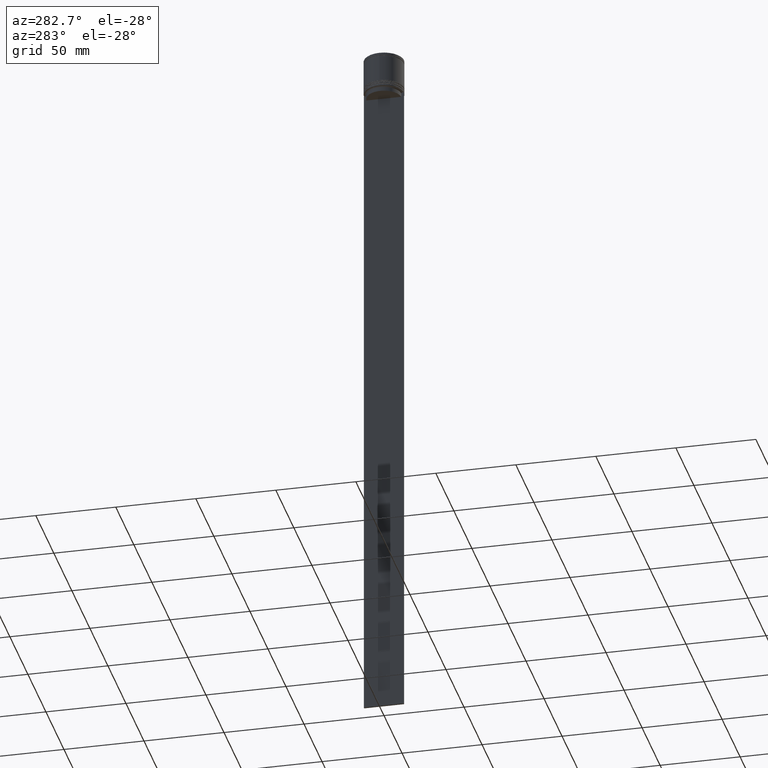
[diagram: clean part render]
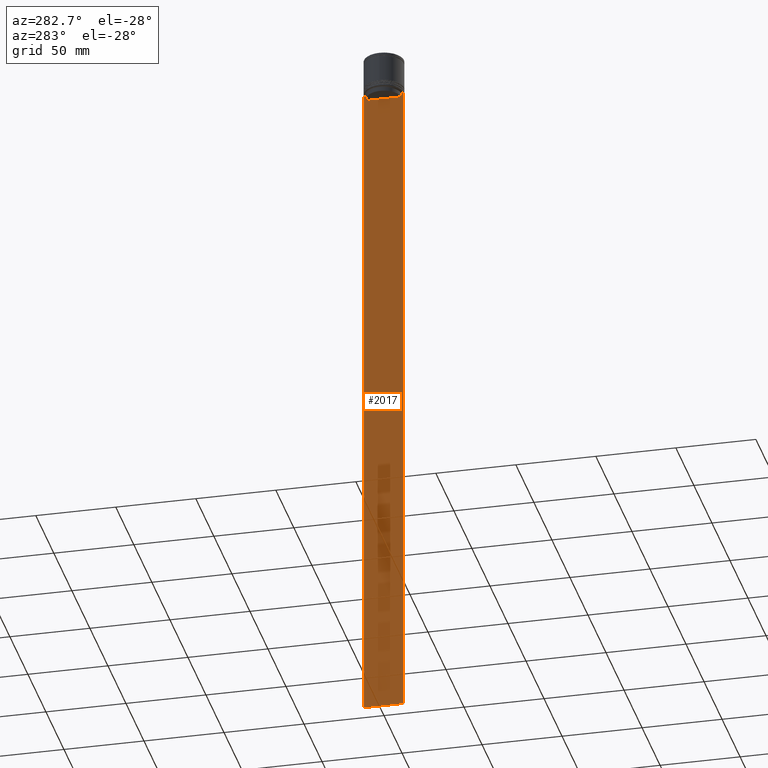
[diagram: same view with one face highlighted and labeled with its STEP entity id]
A machine part, auxiliary view. The second image highlights one B-rep face of the part: STEP entity #2017.
In plain terms, the highlighted planar face has unit normal (-1, 0, 0).
Its self-contained STEP definition (entity closure, byte-faithful):
#37 = VECTOR ( 'NONE', #1473, 1000.000000000000000 ) ;
#46 = CARTESIAN_POINT ( 'NONE',  ( -0.5000000000000000000, 11.22219891375843126, -22.66667035472756808 ) ) ;
#58 = CARTESIAN_POINT ( 'NONE',  ( -0.5000000000000000000, 12.50000000000000711, -22.50000000000000000 ) ) ;
#98 = EDGE_CURVE ( 'NONE', #467, #1903, #1748, .T. ) ;
#115 = CARTESIAN_POINT ( 'NONE',  ( -0.5000000000000000000, -11.38902980942626897, -22.50000000000000000 ) ) ;
#155 = CARTESIAN_POINT ( 'NONE',  ( -0.5000000000000000000, 12.38991525394746596, -22.50000000000000000 ) ) ;
#169 = CARTESIAN_POINT ( 'NONE',  ( -0.5000000000000000000, 10.88852607105297032, -22.99999999999999645 ) ) ;
#172 = CARTESIAN_POINT ( 'NONE',  ( -0.5000000000000000000, 11.38902980942626897, -22.50000000000000000 ) ) ;
#175 = LINE ( 'NONE', #1336, #534 ) ;
#222 = EDGE_CURVE ( 'NONE', #2082, #936, #1758, .T. ) ;
#245 = VERTEX_POINT ( 'NONE', #1164 ) ;
#255 = CARTESIAN_POINT ( 'NONE',  ( -0.5000000000000000000, -12.49999999999999289, -444.5000000000000000 ) ) ;
#307 = CARTESIAN_POINT ( 'NONE',  ( -0.5000000000000000000, -11.38902980942626897, -22.50000000000000000 ) ) ;
#320 = DIRECTION ( 'NONE',  ( 0.000000000000000000, 0.000000000000000000, -1.000000000000000000 ) ) ;
#333 = AXIS2_PLACEMENT_3D ( 'NONE', #1135, #1765, #1970 ) ;
#341 = VERTEX_POINT ( 'NONE', #307 ) ;
#391 = LINE ( 'NONE', #729, #1423 ) ;
#411 = EDGE_LOOP ( 'NONE', ( #2071, #730, #796, #1308, #1525, #845, #2080, #476, #1761, #1329, #575, #1551 ) ) ;
#467 = VERTEX_POINT ( 'NONE', #1180 ) ;
#476 = ORIENTED_EDGE ( 'NONE', *, *, #2033, .F. ) ;
#492 = VECTOR ( 'NONE', #591, 1000.000000000000000 ) ;
#534 = VECTOR ( 'NONE', #1812, 1000.000000000000000 ) ;
#551 = CARTESIAN_POINT ( 'NONE',  ( -0.5000000000000000000, 10.90000000000000924, -25.50000000000000000 ) ) ;
#571 = LINE ( 'NONE', #985, #989 ) ;
#575 = ORIENTED_EDGE ( 'NONE', *, *, #1265, .F. ) ;
#591 = DIRECTION ( 'NONE',  ( 0.000000000000000000, -1.000000000000000000, 0.000000000000000000 ) ) ;
#614 = B_SPLINE_CURVE_WITH_KNOTS ( 'NONE', 3,
 ( #1736, #646, #1302, #115 ),
 .UNSPECIFIED., .F., .F.,
 ( 4, 4 ),
 ( 0.05041323384703231408, 0.05112713601261610619 ),
 .UNSPECIFIED. ) ;
#646 = CARTESIAN_POINT ( 'NONE',  ( -0.5000000000000000000, -11.05536450423839412, -22.83333718996392747 ) ) ;
#653 = EDGE_CURVE ( 'NONE', #1299, #1540, #571, .T. ) ;
#708 = VECTOR ( 'NONE', #1304, 1000.000000000000000 ) ;
#729 = CARTESIAN_POINT ( 'NONE',  ( -0.5000000000000000000, -12.49999999999999289, -22.50000000000000000 ) ) ;
#730 = ORIENTED_EDGE ( 'NONE', *, *, #1705, .F. ) ;
#731 = LINE ( 'NONE', #255, #1286 ) ;
#774 = VERTEX_POINT ( 'NONE', #785 ) ;
#785 = CARTESIAN_POINT ( 'NONE',  ( -0.5000000000000000000, -12.49999999999999289, -444.5000000000000000 ) ) ;
#796 = ORIENTED_EDGE ( 'NONE', *, *, #222, .F. ) ;
#813 = LINE ( 'NONE', #1497, #708 ) ;
#814 = CARTESIAN_POINT ( 'NONE',  ( -0.5000000000000000000, -12.49999999999999289, -22.50000000000000000 ) ) ;
#845 = ORIENTED_EDGE ( 'NONE', *, *, #1980, .F. ) ;
#936 = VERTEX_POINT ( 'NONE', #155 ) ;
#953 = CARTESIAN_POINT ( 'NONE',  ( -0.5000000000000000000, -12.49999999999999289, -22.50000000000000000 ) ) ;
#985 = CARTESIAN_POINT ( 'NONE',  ( -0.5000000000000000000, -10.88852607105297032, 0.000000000000000000 ) ) ;
#987 = LINE ( 'NONE', #1628, #37 ) ;
#989 = VECTOR ( 'NONE', #1764, 1000.000000000000000 ) ;
#994 = VERTEX_POINT ( 'NONE', #1591 ) ;
#1001 = B_SPLINE_CURVE_WITH_KNOTS ( 'NONE', 3,
 ( #1488, #46, #1479, #169 ),
 .UNSPECIFIED., .F., .F.,
 ( 4, 4 ),
 ( 0.01935560801904635808, 0.02006307108468587813 ),
 .UNSPECIFIED. ) ;
#1015 = LINE ( 'NONE', #1654, #1285 ) ;
#1038 = EDGE_CURVE ( 'NONE', #1540, #341, #614, .T. ) ;
#1054 = LINE ( 'NONE', #551, #1583 ) ;
#1109 = EDGE_CURVE ( 'NONE', #1934, #1589, #1001, .T. ) ;
#1135 = CARTESIAN_POINT ( 'NONE',  ( -0.5000000000000000000, -12.49999999999999289, 2.519992006393609874 ) ) ;
#1146 = PLANE ( 'NONE',  #333 ) ;
#1164 = CARTESIAN_POINT ( 'NONE',  ( -0.5000000000000000000, 12.50000000000000711, -444.5000000000000000 ) ) ;
#1170 = FACE_OUTER_BOUND ( 'NONE', #411, .T. ) ;
#1180 = CARTESIAN_POINT ( 'NONE',  ( -0.5000000000000000000, -12.38991525394746596, -22.50000000000000000 ) ) ;
#1218 = DIRECTION ( 'NONE',  ( 0.000000000000000000, -1.000000000000000000, 0.000000000000000000 ) ) ;
#1236 = EDGE_CURVE ( 'NONE', #2082, #245, #1015, .T. ) ;
#1265 = EDGE_CURVE ( 'NONE', #994, #1299, #1054, .T. ) ;
#1282 = CARTESIAN_POINT ( 'NONE',  ( -0.5000000000000000000, -10.88852607105297032, -22.99999999999999645 ) ) ;
#1285 = VECTOR ( 'NONE', #320, 1000.000000000000000 ) ;
#1286 = VECTOR ( 'NONE', #1378, 1000.000000000000000 ) ;
#1299 = VERTEX_POINT ( 'NONE', #1552 ) ;
#1302 = CARTESIAN_POINT ( 'NONE',  ( -0.5000000000000000000, -11.22219891450653151, -22.66667035398018726 ) ) ;
#1304 = DIRECTION ( 'NONE',  ( 0.000000000000000000, 0.000000000000000000, -1.000000000000000000 ) ) ;
#1305 = DIRECTION ( 'NONE',  ( 0.000000000000000000, -1.000000000000000000, 0.000000000000000000 ) ) ;
#1308 = ORIENTED_EDGE ( 'NONE', *, *, #1236, .T. ) ;
#1329 = ORIENTED_EDGE ( 'NONE', *, *, #653, .F. ) ;
#1336 = CARTESIAN_POINT ( 'NONE',  ( -0.5000000000000000000, 10.88852607105297032, 0.000000000000000000 ) ) ;
#1378 = DIRECTION ( 'NONE',  ( 0.000000000000000000, 1.000000000000000000, 0.000000000000000000 ) ) ;
#1381 = EDGE_CURVE ( 'NONE', #774, #245, #731, .T. ) ;
#1423 = VECTOR ( 'NONE', #1218, 1000.000000000000000 ) ;
#1473 = DIRECTION ( 'NONE',  ( 0.000000000000000000, -1.000000000000000000, 0.000000000000000000 ) ) ;
#1479 = CARTESIAN_POINT ( 'NONE',  ( -0.5000000000000000000, 11.05536450345590715, -22.83333719074559554 ) ) ;
#1488 = CARTESIAN_POINT ( 'NONE',  ( -0.5000000000000000000, 11.38902980942626897, -22.50000000000000000 ) ) ;
#1496 = VECTOR ( 'NONE', #1305, 1000.000000000000000 ) ;
#1497 = CARTESIAN_POINT ( 'NONE',  ( -0.5000000000000000000, -12.49999999999999289, 2.519992006393609874 ) ) ;
#1525 = ORIENTED_EDGE ( 'NONE', *, *, #1381, .F. ) ;
#1540 = VERTEX_POINT ( 'NONE', #1282 ) ;
#1551 = ORIENTED_EDGE ( 'NONE', *, *, #1566, .F. ) ;
#1552 = CARTESIAN_POINT ( 'NONE',  ( -0.5000000000000000000, -10.88852607105296855, -25.50000000000000000 ) ) ;
#1566 = EDGE_CURVE ( 'NONE', #1589, #994, #175, .T. ) ;
#1568 = CARTESIAN_POINT ( 'NONE',  ( -0.5000000000000000000, -12.49999999999999289, -22.50000000000000000 ) ) ;
#1583 = VECTOR ( 'NONE', #2004, 1000.000000000000000 ) ;
#1589 = VERTEX_POINT ( 'NONE', #1973 ) ;
#1591 = CARTESIAN_POINT ( 'NONE',  ( -0.5000000000000000000, 10.88852607105296855, -25.50000000000000000 ) ) ;
#1628 = CARTESIAN_POINT ( 'NONE',  ( -0.5000000000000000000, -12.49999999999999289, -22.50000000000000000 ) ) ;
#1654 = CARTESIAN_POINT ( 'NONE',  ( -0.5000000000000000000, 12.50000000000000711, 2.519992006393609874 ) ) ;
#1705 = EDGE_CURVE ( 'NONE', #936, #1934, #391, .T. ) ;
#1736 = CARTESIAN_POINT ( 'NONE',  ( -0.5000000000000000000, -10.88852607105297032, -22.99999999999999645 ) ) ;
#1748 = LINE ( 'NONE', #953, #492 ) ;
#1758 = LINE ( 'NONE', #814, #1496 ) ;
#1761 = ORIENTED_EDGE ( 'NONE', *, *, #1038, .F. ) ;
#1764 = DIRECTION ( 'NONE',  ( -0.000000000000000000, -0.000000000000000000, 1.000000000000000000 ) ) ;
#1765 = DIRECTION ( 'NONE',  ( -1.000000000000000000, 0.000000000000000000, 0.000000000000000000 ) ) ;
#1812 = DIRECTION ( 'NONE',  ( 0.000000000000000000, 0.000000000000000000, -1.000000000000000000 ) ) ;
#1903 = VERTEX_POINT ( 'NONE', #1568 ) ;
#1934 = VERTEX_POINT ( 'NONE', #172 ) ;
#1970 = DIRECTION ( 'NONE',  ( 0.000000000000000000, 0.000000000000000000, 1.000000000000000000 ) ) ;
#1973 = CARTESIAN_POINT ( 'NONE',  ( -0.5000000000000000000, 10.88852607105297032, -22.99999999999999645 ) ) ;
#1980 = EDGE_CURVE ( 'NONE', #1903, #774, #813, .T. ) ;
#2004 = DIRECTION ( 'NONE',  ( 0.000000000000000000, -1.000000000000000000, 0.000000000000000000 ) ) ;
#2017 = ADVANCED_FACE ( 'NONE', ( #1170 ), #1146, .T. ) ;
#2033 = EDGE_CURVE ( 'NONE', #341, #467, #987, .T. ) ;
#2071 = ORIENTED_EDGE ( 'NONE', *, *, #1109, .F. ) ;
#2080 = ORIENTED_EDGE ( 'NONE', *, *, #98, .F. ) ;
#2082 = VERTEX_POINT ( 'NONE', #58 ) ;